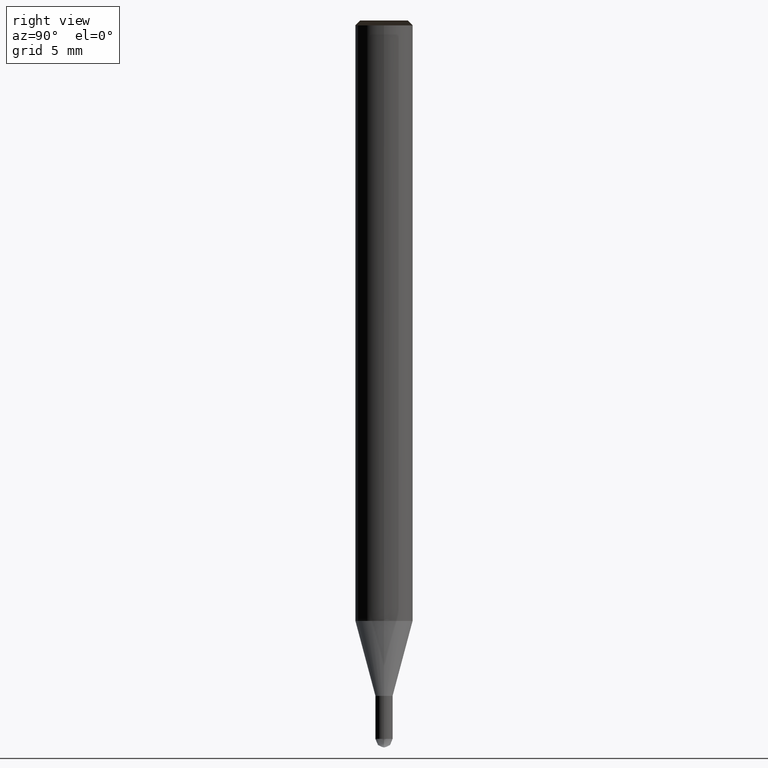
[diagram: clean part render]
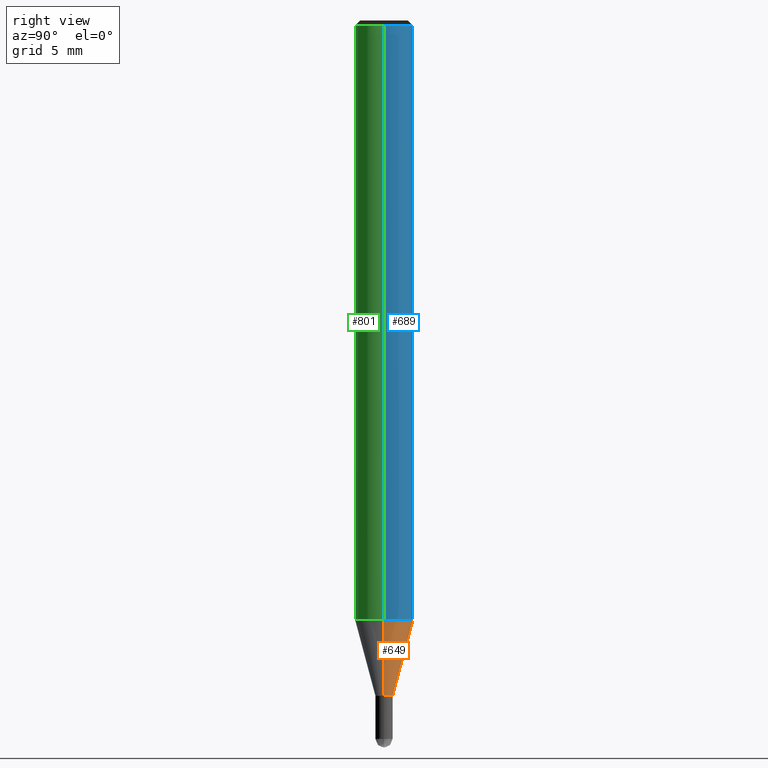
[diagram: same view with three faces highlighted in distinct colors, each labeled with its STEP entity id]
A machine part, right view with three faces highlighted in distinct colors.
Their STEP definitions:

[orange] entity #649 — the highlighted face is a freeform B-spline surface patch.
#451=CARTESIAN_POINT('',(0.45,0.0,-4.0));
#452=CARTESIAN_POINT('',(0.45,0.45,-4.0));
#453=CARTESIAN_POINT('',(0.0,0.45,-4.0));
#454=CARTESIAN_POINT('',(-0.45,0.45,-4.0));
#455=CARTESIAN_POINT('',(-0.45,0.0,-4.0));
#466=CARTESIAN_POINT('',(1.5,0.0,-0.081346652053));
#467=CARTESIAN_POINT('',(1.5,1.5,-0.081346652053));
#468=CARTESIAN_POINT('',(0.0,1.5,-0.081346652053));
#469=CARTESIAN_POINT('',(-1.5,1.5,-0.081346652053));
#470=CARTESIAN_POINT('',(-1.5,0.0,-0.081346652053));
#630=(
BOUNDED_SURFACE()
B_SPLINE_SURFACE(1,2,(
(#451,#452,#453,#454,#455),
(#466,#467,#468,#469,#470)
), .UNSPECIFIED.,.F.,.F.,.F.)
B_SPLINE_SURFACE_WITH_KNOTS((2,2),(3,2,3),(
0.0,1.0),(
0.0,0.5,1.0), .UNSPECIFIED.)
GEOMETRIC_REPRESENTATION_ITEM()
RATIONAL_B_SPLINE_SURFACE(((1.0,0.707106781187,1.0,0.707106781187,1.0),
(1.0,0.707106781187,1.0,0.707106781187,1.0)
))
REPRESENTATION_ITEM('')
SURFACE()
);
#631=(
BOUNDED_CURVE()
B_SPLINE_CURVE(2,(#455,#454,#453,#452,#451),.UNSPECIFIED.,.F.,.F.)
B_SPLINE_CURVE_WITH_KNOTS((3,2,3),
(0.0,0.5,1.0),.UNSPECIFIED.)
CURVE()
GEOMETRIC_REPRESENTATION_ITEM()
RATIONAL_B_SPLINE_CURVE((1.0,0.707106781187,1.0,0.707106781187,1.0))
REPRESENTATION_ITEM('')
);
#632=(
BOUNDED_CURVE()
B_SPLINE_CURVE(1,(#451,#466),.UNSPECIFIED.,.F.,.F.)
B_SPLINE_CURVE_WITH_KNOTS((2,2),
(0.0,1.0),.UNSPECIFIED.)
CURVE()
GEOMETRIC_REPRESENTATION_ITEM()
RATIONAL_B_SPLINE_CURVE((1.0,1.0))
REPRESENTATION_ITEM('')
);
#633=(
BOUNDED_CURVE()
B_SPLINE_CURVE(2,(#466,#467,#468,#469,#470),.UNSPECIFIED.,.F.,.F.)
B_SPLINE_CURVE_WITH_KNOTS((3,2,3),
(0.0,0.5,1.0),.UNSPECIFIED.)
CURVE()
GEOMETRIC_REPRESENTATION_ITEM()
RATIONAL_B_SPLINE_CURVE((1.0,0.707106781187,1.0,0.707106781187,1.0))
REPRESENTATION_ITEM('')
);
#634=(
BOUNDED_CURVE()
B_SPLINE_CURVE(1,(#470,#455),.UNSPECIFIED.,.F.,.F.)
B_SPLINE_CURVE_WITH_KNOTS((2,2),
(0.0,1.0),.UNSPECIFIED.)
CURVE()
GEOMETRIC_REPRESENTATION_ITEM()
RATIONAL_B_SPLINE_CURVE((1.0,1.0))
REPRESENTATION_ITEM('')
);
#635=VERTEX_POINT('',#451);
#636=VERTEX_POINT('',#455);
#637=VERTEX_POINT('',#466);
#638=VERTEX_POINT('',#470);
#639=EDGE_CURVE('',#636,#635,#631,.T.);
#640=EDGE_CURVE('',#635,#637,#632,.T.);
#641=EDGE_CURVE('',#637,#638,#633,.T.);
#642=EDGE_CURVE('',#638,#636,#634,.T.);
#643=ORIENTED_EDGE('',*,*,#639,.T.);
#644=ORIENTED_EDGE('',*,*,#640,.T.);
#645=ORIENTED_EDGE('',*,*,#641,.T.);
#646=ORIENTED_EDGE('',*,*,#642,.T.);
#647=EDGE_LOOP('',(#643,#644,#645,#646));
#648=FACE_OUTER_BOUND('',#647,.T.);
#649=ADVANCED_FACE('',(#648),#630,.T.);

[blue] entity #689 — the highlighted face is a freeform B-spline surface patch.
#471=CARTESIAN_POINT('',(1.5,0.0,0.0));
#472=CARTESIAN_POINT('',(1.5,1.5,0.0));
#473=CARTESIAN_POINT('',(0.0,1.5,0.0));
#474=CARTESIAN_POINT('',(-1.5,1.5,0.0));
#475=CARTESIAN_POINT('',(-1.5,0.0,0.0));
#476=CARTESIAN_POINT('',(1.5,0.0,31.05));
#477=CARTESIAN_POINT('',(1.5,1.5,31.05));
#478=CARTESIAN_POINT('',(0.0,1.5,31.05));
#479=CARTESIAN_POINT('',(-1.5,1.5,31.05));
#480=CARTESIAN_POINT('',(-1.5,0.0,31.05));
#670=(
BOUNDED_SURFACE()
B_SPLINE_SURFACE(1,2,(
(#471,#472,#473,#474,#475),
(#476,#477,#478,#479,#480)
), .UNSPECIFIED.,.F.,.F.,.F.)
B_SPLINE_SURFACE_WITH_KNOTS((2,2),(3,2,3),(
0.0,1.0),(
0.0,0.5,1.0), .UNSPECIFIED.)
GEOMETRIC_REPRESENTATION_ITEM()
RATIONAL_B_SPLINE_SURFACE(((1.0,0.707106781187,1.0,0.707106781187,1.0),
(1.0,0.707106781187,1.0,0.707106781187,1.0)
))
REPRESENTATION_ITEM('')
SURFACE()
);
#671=(
BOUNDED_CURVE()
B_SPLINE_CURVE(2,(#475,#474,#473,#472,#471),.UNSPECIFIED.,.F.,.F.)
B_SPLINE_CURVE_WITH_KNOTS((3,2,3),
(0.0,0.5,1.0),.UNSPECIFIED.)
CURVE()
GEOMETRIC_REPRESENTATION_ITEM()
RATIONAL_B_SPLINE_CURVE((1.0,0.707106781187,1.0,0.707106781187,1.0))
REPRESENTATION_ITEM('')
);
#672=(
BOUNDED_CURVE()
B_SPLINE_CURVE(1,(#471,#476),.UNSPECIFIED.,.F.,.F.)
B_SPLINE_CURVE_WITH_KNOTS((2,2),
(0.0,1.0),.UNSPECIFIED.)
CURVE()
GEOMETRIC_REPRESENTATION_ITEM()
RATIONAL_B_SPLINE_CURVE((1.0,1.0))
REPRESENTATION_ITEM('')
);
#673=(
BOUNDED_CURVE()
B_SPLINE_CURVE(2,(#476,#477,#478,#479,#480),.UNSPECIFIED.,.F.,.F.)
B_SPLINE_CURVE_WITH_KNOTS((3,2,3),
(0.0,0.5,1.0),.UNSPECIFIED.)
CURVE()
GEOMETRIC_REPRESENTATION_ITEM()
RATIONAL_B_SPLINE_CURVE((1.0,0.707106781187,1.0,0.707106781187,1.0))
REPRESENTATION_ITEM('')
);
#674=(
BOUNDED_CURVE()
B_SPLINE_CURVE(1,(#480,#475),.UNSPECIFIED.,.F.,.F.)
B_SPLINE_CURVE_WITH_KNOTS((2,2),
(0.0,1.0),.UNSPECIFIED.)
CURVE()
GEOMETRIC_REPRESENTATION_ITEM()
RATIONAL_B_SPLINE_CURVE((1.0,1.0))
REPRESENTATION_ITEM('')
);
#675=VERTEX_POINT('',#471);
#676=VERTEX_POINT('',#475);
#677=VERTEX_POINT('',#476);
#678=VERTEX_POINT('',#480);
#679=EDGE_CURVE('',#676,#675,#671,.T.);
#680=EDGE_CURVE('',#675,#677,#672,.T.);
#681=EDGE_CURVE('',#677,#678,#673,.T.);
#682=EDGE_CURVE('',#678,#676,#674,.T.);
#683=ORIENTED_EDGE('',*,*,#679,.T.);
#684=ORIENTED_EDGE('',*,*,#680,.T.);
#685=ORIENTED_EDGE('',*,*,#681,.T.);
#686=ORIENTED_EDGE('',*,*,#682,.T.);
#687=EDGE_LOOP('',(#683,#684,#685,#686));
#688=FACE_OUTER_BOUND('',#687,.T.);
#689=ADVANCED_FACE('',(#688),#670,.T.);

[green] entity #801 — the highlighted face is a freeform B-spline surface patch.
#471=CARTESIAN_POINT('',(1.5,0.0,0.0));
#475=CARTESIAN_POINT('',(-1.5,0.0,0.0));
#476=CARTESIAN_POINT('',(1.5,0.0,31.05));
#480=CARTESIAN_POINT('',(-1.5,0.0,31.05));
#490=CARTESIAN_POINT('',(-1.5,-1.5,0.0));
#491=CARTESIAN_POINT('',(0.0,-1.5,0.0));
#492=CARTESIAN_POINT('',(1.5,-1.5,0.0));
#493=CARTESIAN_POINT('',(-1.5,-1.5,31.05));
#494=CARTESIAN_POINT('',(0.0,-1.5,31.05));
#495=CARTESIAN_POINT('',(1.5,-1.5,31.05));
#782=(
BOUNDED_SURFACE()
B_SPLINE_SURFACE(1,2,(
(#475,#490,#491,#492,#471),
(#480,#493,#494,#495,#476)
), .UNSPECIFIED.,.F.,.F.,.F.)
B_SPLINE_SURFACE_WITH_KNOTS((2,2),(3,2,3),(
0.0,1.0),(
0.0,0.5,1.0), .UNSPECIFIED.)
GEOMETRIC_REPRESENTATION_ITEM()
RATIONAL_B_SPLINE_SURFACE(((1.0,0.707106781187,1.0,0.707106781187,1.0),
(1.0,0.707106781187,1.0,0.707106781187,1.0)
))
REPRESENTATION_ITEM('')
SURFACE()
);
#783=(
BOUNDED_CURVE()
B_SPLINE_CURVE(2,(#471,#492,#491,#490,#475),.UNSPECIFIED.,.F.,.F.)
B_SPLINE_CURVE_WITH_KNOTS((3,2,3),
(0.0,0.5,1.0),.UNSPECIFIED.)
CURVE()
GEOMETRIC_REPRESENTATION_ITEM()
RATIONAL_B_SPLINE_CURVE((1.0,0.707106781187,1.0,0.707106781187,1.0))
REPRESENTATION_ITEM('')
);
#784=(
BOUNDED_CURVE()
B_SPLINE_CURVE(1,(#475,#480),.UNSPECIFIED.,.F.,.F.)
B_SPLINE_CURVE_WITH_KNOTS((2,2),
(0.0,1.0),.UNSPECIFIED.)
CURVE()
GEOMETRIC_REPRESENTATION_ITEM()
RATIONAL_B_SPLINE_CURVE((1.0,1.0))
REPRESENTATION_ITEM('')
);
#785=(
BOUNDED_CURVE()
B_SPLINE_CURVE(2,(#480,#493,#494,#495,#476),.UNSPECIFIED.,.F.,.F.)
B_SPLINE_CURVE_WITH_KNOTS((3,2,3),
(0.0,0.5,1.0),.UNSPECIFIED.)
CURVE()
GEOMETRIC_REPRESENTATION_ITEM()
RATIONAL_B_SPLINE_CURVE((1.0,0.707106781187,1.0,0.707106781187,1.0))
REPRESENTATION_ITEM('')
);
#786=(
BOUNDED_CURVE()
B_SPLINE_CURVE(1,(#476,#471),.UNSPECIFIED.,.F.,.F.)
B_SPLINE_CURVE_WITH_KNOTS((2,2),
(0.0,1.0),.UNSPECIFIED.)
CURVE()
GEOMETRIC_REPRESENTATION_ITEM()
RATIONAL_B_SPLINE_CURVE((1.0,1.0))
REPRESENTATION_ITEM('')
);
#787=VERTEX_POINT('',#471);
#788=VERTEX_POINT('',#475);
#789=VERTEX_POINT('',#476);
#790=VERTEX_POINT('',#480);
#791=EDGE_CURVE('',#787,#788,#783,.T.);
#792=EDGE_CURVE('',#788,#790,#784,.T.);
#793=EDGE_CURVE('',#790,#789,#785,.T.);
#794=EDGE_CURVE('',#789,#787,#786,.T.);
#795=ORIENTED_EDGE('',*,*,#791,.T.);
#796=ORIENTED_EDGE('',*,*,#792,.T.);
#797=ORIENTED_EDGE('',*,*,#793,.T.);
#798=ORIENTED_EDGE('',*,*,#794,.T.);
#799=EDGE_LOOP('',(#795,#796,#797,#798));
#800=FACE_OUTER_BOUND('',#799,.T.);
#801=ADVANCED_FACE('',(#800),#782,.T.);